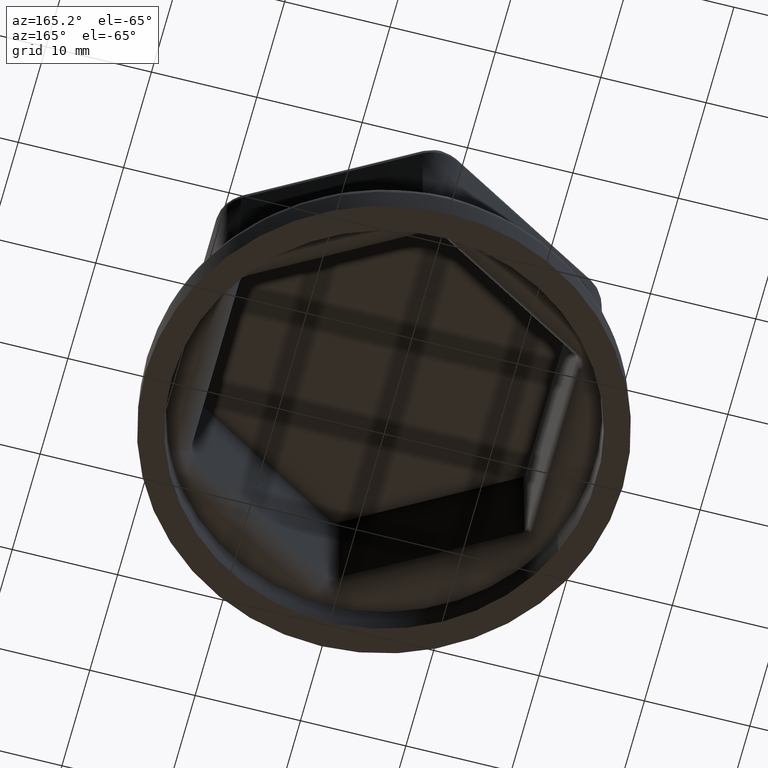
[diagram: clean part render]
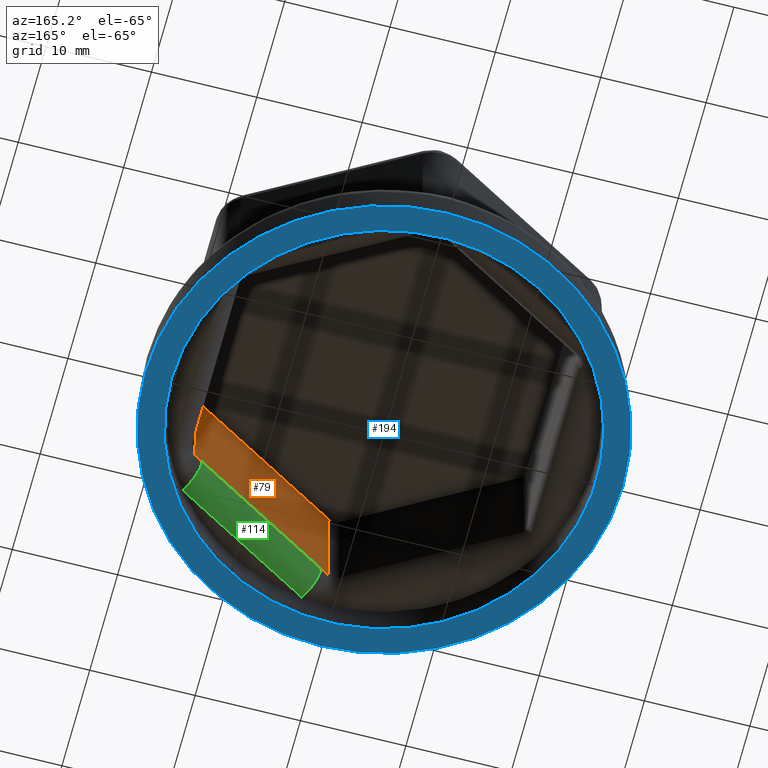
[diagram: same view with three faces highlighted in distinct colors, each labeled with its STEP entity id]
A machine part, auxiliary view with three faces highlighted in distinct colors.
Their STEP definitions:

[orange] entity #79 — the highlighted planar face has unit normal (0.4999, -0.8659, 0.0175).
#79 = ADVANCED_FACE( '', ( #215 ), #216, .F. );
#215 = FACE_OUTER_BOUND( '', #487, .T. );
#216 = PLANE( '', #488 );
#487 = EDGE_LOOP( '', ( #5792, #5793, #5794, #5795, #5796, #5797 ) );
#488 = AXIS2_PLACEMENT_3D( '', #5798, #5799, #5800 );
#5792 = ORIENTED_EDGE( '', *, *, #6537, .F. );
#5793 = ORIENTED_EDGE( '', *, *, #6530, .T. );
#5794 = ORIENTED_EDGE( '', *, *, #6538, .F. );
#5795 = ORIENTED_EDGE( '', *, *, #6539, .F. );
#5796 = ORIENTED_EDGE( '', *, *, #6540, .F. );
#5797 = ORIENTED_EDGE( '', *, *, #6541, .F. );
#5798 = CARTESIAN_POINT( '', ( 24.0000000000000, -4.61880215351702, 3.30000000000000 ) );
#5799 = DIRECTION( '', ( 0.499923847578195, -0.865893503920754, 0.0174524064372835 ) );
#5800 = DIRECTION( '', ( 0.866025403784439, 0.500000000000000, 0.000000000000000 ) );
#6530 = EDGE_CURVE( '', #6858, #6856, #6859, .F. );
#6537 = EDGE_CURVE( '', #6858, #6870, #6871, .F. );
#6538 = EDGE_CURVE( '', #6872, #6856, #6873, .T. );
#6539 = EDGE_CURVE( '', #6874, #6872, #6875, .T. );
#6540 = EDGE_CURVE( '', #6876, #6874, #6877, .T. );
#6541 = EDGE_CURVE( '', #6870, #6876, #6878, .T. );
#6856 = VERTEX_POINT( '', #7481 );
#6858 = VERTEX_POINT( '', #7483 );
#6859 = LINE( '', #7484, #7485 );
#6870 = VERTEX_POINT( '', #7509 );
#6871 = LINE( '', #7510, #7511 );
#6872 = VERTEX_POINT( '', #7512 );
#6873 = LINE( '', #7513, #7514 );
#6874 = VERTEX_POINT( '', #7515 );
#6875 = B_SPLINE_CURVE_WITH_KNOTS( '', 3, ( #7516, #7517, #7518, #7519, #7520, #7521 ), .UNSPECIFIED., .F., .F., ( 4, 2, 4 ), ( 0.000000000000000, 0.000466255855493828, 0.000932511710987655 ), .UNSPECIFIED. );
#6876 = VERTEX_POINT( '', #7522 );
#6877 = LINE( '', #7523, #7524 );
#6878 = B_SPLINE_CURVE_WITH_KNOTS( '', 3, ( #7525, #7526, #7527, #7528, #7529, #7530 ), .UNSPECIFIED., .F., .F., ( 4, 2, 4 ), ( 8.67361737988403E-019, 0.000466255855493813, 0.000932511710987625 ), .UNSPECIFIED. );
#7481 = CARTESIAN_POINT( '', ( 15.2557052434268, -9.38514786491720, 17.3000000000000 ) );
#7483 = CARTESIAN_POINT( '', ( 0.499923847578202, -17.9044022259136, 17.3000000000000 ) );
#7484 = CARTESIAN_POINT( '', ( 7.87781454550248, -13.6447750454154, 17.3000000000000 ) );
#7485 = VECTOR( '', #9769, 1000.00000000000 );
#7509 = CARTESIAN_POINT( '', ( 0.499923847578208, -18.1376466104436, 5.72768198664934 ) );
#7510 = CARTESIAN_POINT( '', ( 0.499923847578208, -18.1810679240570, 3.57335252356805 ) );
#7511 = VECTOR( '', #9776, 1000.00000000000 );
#7512 = CARTESIAN_POINT( '', ( 15.4577008057198, -9.50177005718219, 5.72768198664934 ) );
#7513 = CARTESIAN_POINT( '', ( 15.5018019518526, -9.52723186577357, 3.20112901682524 ) );
#7514 = VECTOR( '', #9777, 1000.00000000000 );
#7515 = CARTESIAN_POINT( '', ( 14.6502539496583, -9.96737151975933, 5.75636898390679 ) );
#7516 = CARTESIAN_POINT( '', ( 14.6502539496583, -9.96737151975933, 5.75636898390679 ) );
#7517 = CARTESIAN_POINT( '', ( 14.7849141752957, -9.88962540223845, 5.75636898390679 ) );
#7518 = CARTESIAN_POINT( '', ( 14.9195358646570, -9.81194484105406, 5.75422030586407 ) );
#7519 = CARTESIAN_POINT( '', ( 15.1886893899880, -9.65673657359964, 5.74491296881032 ) );
#7520 = CARTESIAN_POINT( '', ( 15.3232212531328, -9.57920882110035, 5.73775582501200 ) );
#7521 = CARTESIAN_POINT( '', ( 15.4577008057198, -9.50177005718219, 5.72768198664946 ) );
#7522 = CARTESIAN_POINT( '', ( 1.30686997023990, -17.6711778521771, 5.75636898390679 ) );
#7523 = CARTESIAN_POINT( '', ( 23.9785619599491, -4.58167037893421, 5.75636898390679 ) );
#7524 = VECTOR( '', #9778, 1000.00000000000 );
#7525 = CARTESIAN_POINT( '', ( 0.499923847578210, -18.1376466104436, 5.72768198664934 ) );
#7526 = CARTESIAN_POINT( '', ( 0.634227560662497, -18.0599032835728, 5.73775582501189 ) );
#7527 = CARTESIAN_POINT( '', ( 0.768634495397584, -17.9821591487206, 5.74491296881033 ) );
#7528 = CARTESIAN_POINT( '', ( 1.03762556055595, -17.8266694919931, 5.75422030586407 ) );
#7529 = CARTESIAN_POINT( '', ( 1.17220974460251, -17.7489239696980, 5.75636898390679 ) );
#7530 = CARTESIAN_POINT( '', ( 1.30686997023990, -17.6711778521771, 5.75636898390679 ) );
#9769 = DIRECTION( '', ( -0.866025403784439, -0.500000000000000, 0.000000000000000 ) );
#9776 = DIRECTION( '', ( 1.30117470031647E-018, 0.0201512801671579, 0.999796942337605 ) );
#9777 = DIRECTION( '', ( -0.0174515205435363, 0.0100756400835790, 0.999796942337605 ) );
#9778 = DIRECTION( '', ( 0.866025403784439, 0.500000000000000, 8.67361737988403E-019 ) );

[blue] entity #194 — the highlighted planar face has unit normal (0, 0, 1).
#194 = ADVANCED_FACE( '', ( #447, #448 ), #449, .F. );
#447 = FACE_BOUND( '', #5482, .T. );
#448 = FACE_OUTER_BOUND( '', #5483, .T. );
#449 = PLANE( '', #5484 );
#5482 = EDGE_LOOP( '', ( #6449 ) );
#5483 = EDGE_LOOP( '', ( #6450 ) );
#5484 = AXIS2_PLACEMENT_3D( '', #6451, #6452, #6453 );
#6449 = ORIENTED_EDGE( '', *, *, #6611, .T. );
#6450 = ORIENTED_EDGE( '', *, *, #6693, .F. );
#6451 = CARTESIAN_POINT( '', ( 0.000000000000000, 0.000000000000000, 0.000000000000000 ) );
#6452 = DIRECTION( '', ( 0.000000000000000, 0.000000000000000, 1.00000000000000 ) );
#6453 = DIRECTION( '', ( 1.00000000000000, 0.000000000000000, 0.000000000000000 ) );
#6611 = EDGE_CURVE( '', #6986, #6986, #6987, .T. );
#6693 = EDGE_CURVE( '', #7129, #7129, #7130, .T. );
#6986 = VERTEX_POINT( '', #7859 );
#6987 = CIRCLE( '', #7860, 20.1729456716340 );
#7129 = VERTEX_POINT( '', #8662 );
#7130 = CIRCLE( '', #8663, 22.6729456716340 );
#7859 = CARTESIAN_POINT( '', ( 20.1729456716340, 0.000000000000000, 0.000000000000000 ) );
#7860 = AXIS2_PLACEMENT_3D( '', #9915, #9916, #9917 );
#8662 = CARTESIAN_POINT( '', ( 22.6729456716340, 0.000000000000000, 0.000000000000000 ) );
#8663 = AXIS2_PLACEMENT_3D( '', #10015, #10016, #10017 );
#9915 = CARTESIAN_POINT( '', ( 0.000000000000000, 0.000000000000000, 0.000000000000000 ) );
#9916 = DIRECTION( '', ( 0.000000000000000, 0.000000000000000, 1.00000000000000 ) );
#9917 = DIRECTION( '', ( 1.00000000000000, 0.000000000000000, 0.000000000000000 ) );
#10015 = CARTESIAN_POINT( '', ( 0.000000000000000, 0.000000000000000, 0.000000000000000 ) );
#10016 = DIRECTION( '', ( 0.000000000000000, 0.000000000000000, 1.00000000000000 ) );
#10017 = DIRECTION( '', ( 1.00000000000000, 0.000000000000000, 0.000000000000000 ) );

[green] entity #114 — the highlighted cylindrical surface (edge-blend (fillet) strip) has radius 2.5 mm, axis along (0.866, 0.5, 0).
#114 = ADVANCED_FACE( '', ( #286 ), #287, .T. );
#286 = FACE_OUTER_BOUND( '', #1686, .T. );
#287 = CYLINDRICAL_SURFACE( '', #1687, 2.50000000000000 );
#1686 = EDGE_LOOP( '', ( #6011, #6012, #6013, #6014 ) );
#1687 = AXIS2_PLACEMENT_3D( '', #6015, #6016, #6017 );
#6011 = ORIENTED_EDGE( '', *, *, #6549, .F. );
#6012 = ORIENTED_EDGE( '', *, *, #6619, .T. );
#6013 = ORIENTED_EDGE( '', *, *, #6620, .T. );
#6014 = ORIENTED_EDGE( '', *, *, #6540, .T. );
#6015 = CARTESIAN_POINT( '', ( 25.2283715788946, -6.74640413873609, 5.80000000000000 ) );
#6016 = DIRECTION( '', ( 0.866025403784439, 0.500000000000000, 0.000000000000000 ) );
#6017 = DIRECTION( '', ( 0.500000000000000, -0.866025403784439, 0.000000000000000 ) );
#6540 = EDGE_CURVE( '', #6876, #6874, #6877, .T. );
#6549 = EDGE_CURVE( '', #6890, #6874, #6892, .T. );
#6619 = EDGE_CURVE( '', #6890, #6992, #6996, .T. );
#6620 = EDGE_CURVE( '', #6992, #6876, #6997, .T. );
#6874 = VERTEX_POINT( '', #7515 );
#6876 = VERTEX_POINT( '', #7522 );
#6877 = LINE( '', #7523, #7524 );
#6890 = VERTEX_POINT( '', #7555 );
#6892 = CIRCLE( '', #7557, 2.50000000000000 );
#6992 = VERTEX_POINT( '', #7865 );
#6996 = LINE( '', #7869, #7870 );
#6997 = CIRCLE( '', #7871, 2.50000000000000 );
#7515 = CARTESIAN_POINT( '', ( 14.6502539496583, -9.96737151975933, 5.75636898390679 ) );
#7522 = CARTESIAN_POINT( '', ( 1.30686997023990, -17.6711778521771, 5.75636898390679 ) );
#7523 = CARTESIAN_POINT( '', ( 23.9785619599491, -4.58167037893421, 5.75636898390679 ) );
#7524 = VECTOR( '', #9778, 1000.00000000000 );
#7555 = CARTESIAN_POINT( '', ( 15.9000635686038, -12.1321052795612, 3.30000000000000 ) );
#7557 = AXIS2_PLACEMENT_3D( '', #9788, #9789, #9790 );
#7865 = CARTESIAN_POINT( '', ( 2.55667958918539, -19.8359116119790, 3.30000000000000 ) );
#7869 = CARTESIAN_POINT( '', ( 9.22837157889461, -15.9840084457701, 3.30000000000000 ) );
#7870 = VECTOR( '', #9939, 1000.00000000000 );
#7871 = AXIS2_PLACEMENT_3D( '', #9940, #9941, #9942 );
#9778 = DIRECTION( '', ( 0.866025403784439, 0.500000000000000, 8.67361737988403E-019 ) );
#9788 = CARTESIAN_POINT( '', ( 15.9000635686038, -12.1321052795612, 5.80000000000000 ) );
#9789 = DIRECTION( '', ( 0.866025403784439, 0.500000000000000, 5.07962288599006E-016 ) );
#9790 = DIRECTION( '', ( -0.500000000000000, 0.866025403784439, 0.000000000000000 ) );
#9939 = DIRECTION( '', ( -0.866025403784439, -0.500000000000000, 0.000000000000000 ) );
#9940 = CARTESIAN_POINT( '', ( 2.55667958918539, -19.8359116119790, 5.80000000000000 ) );
#9941 = DIRECTION( '', ( 0.866025403784438, 0.500000000000001, 0.000000000000000 ) );
#9942 = DIRECTION( '', ( -0.500000000000001, 0.866025403784438, 0.000000000000000 ) );